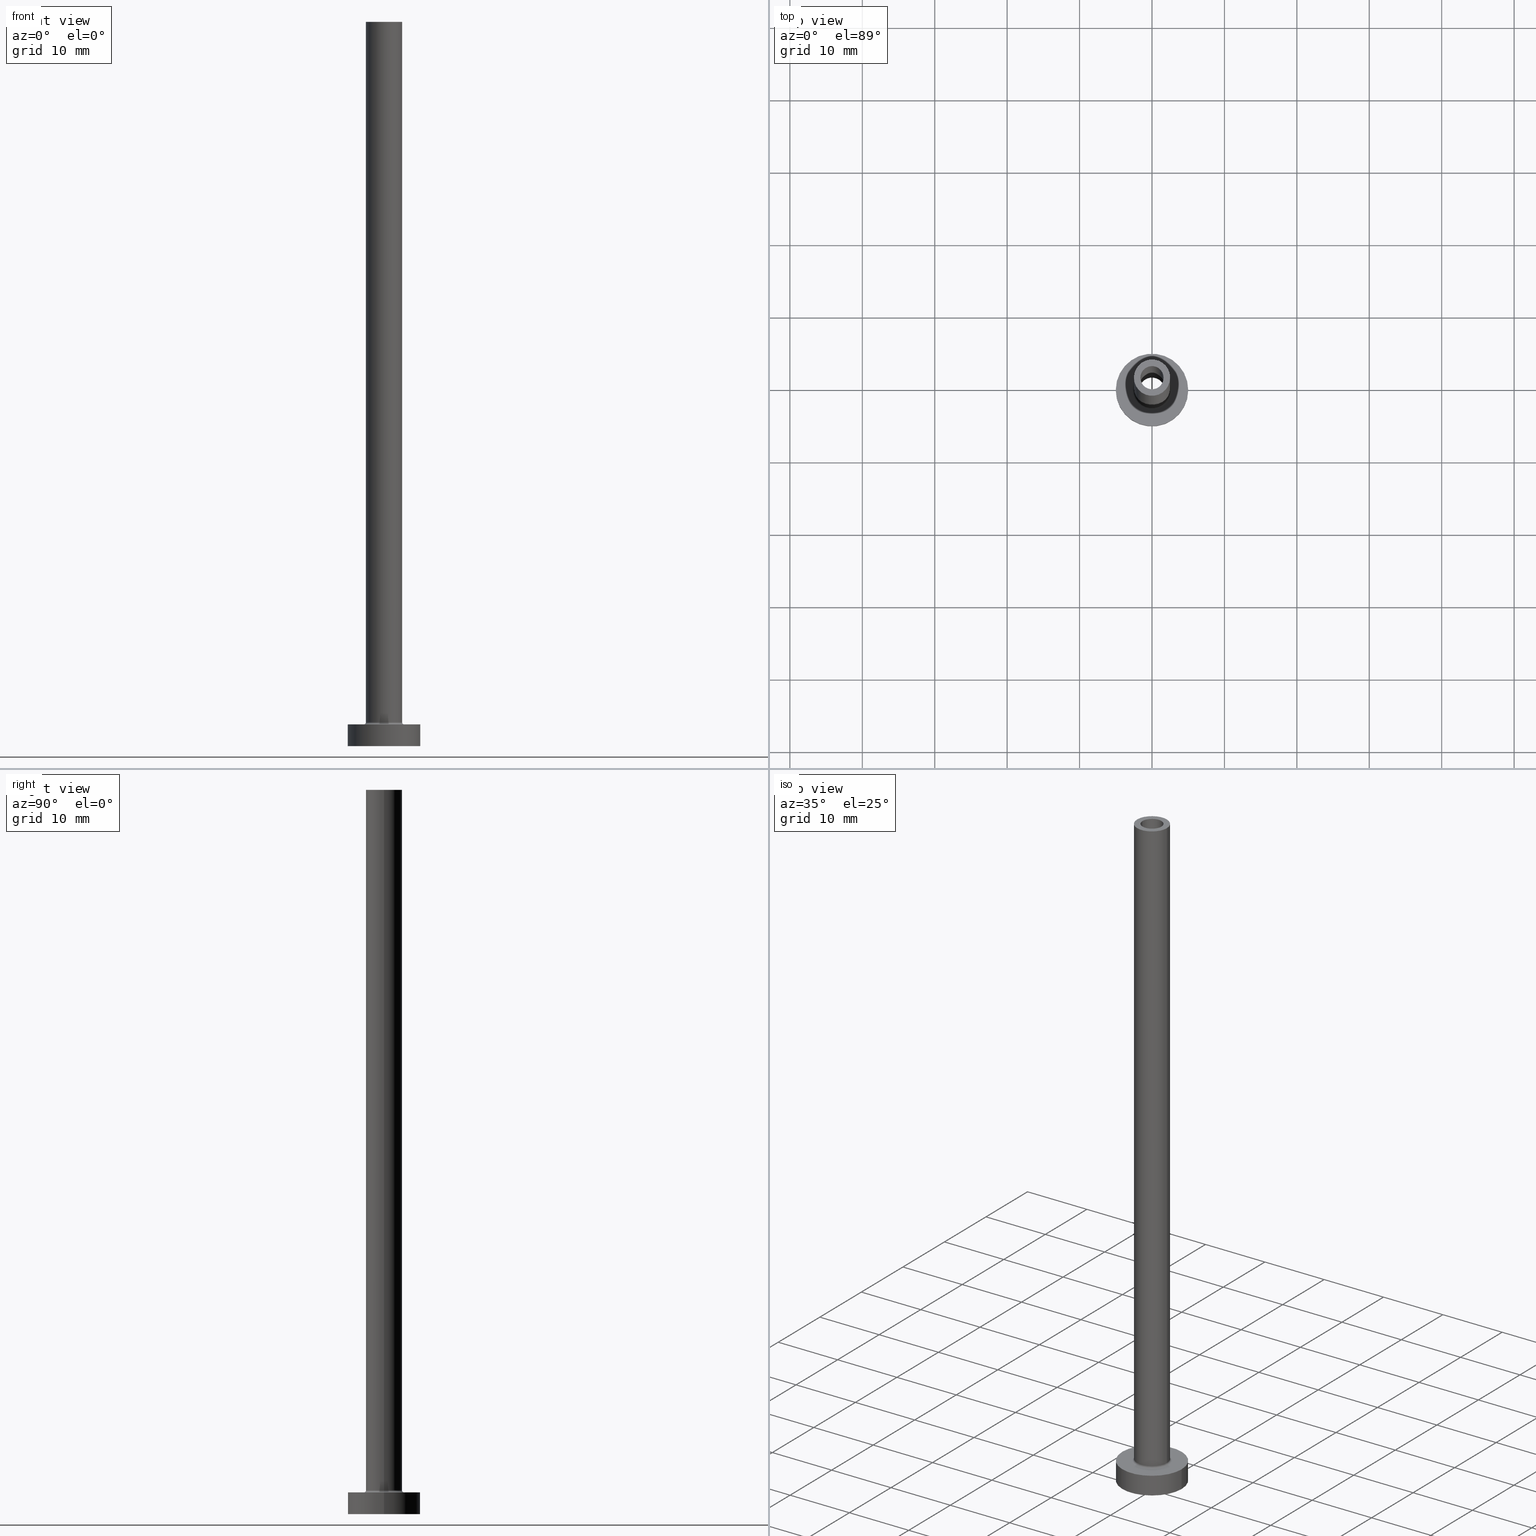
[diagram: canonical four-view strip — front | top / right | iso, engineering-drawing reading convention]
A machine part, canonical four-view strip (front | top / right | iso — engineering-drawing reading convention). The complete STEP part file that produces these views, byte-faithful:
ISO-10303-21;
HEADER;
FILE_DESCRIPTION (( 'STEP AP203' ),
    '1' );
FILE_NAME ('b36a.STEP',
    '2023-02-13T17:58:02',
    ( '' ),
    ( '' ),
    'SwSTEP 2.0',
    'SolidWorks 2019',
    '' );
FILE_SCHEMA (( 'CONFIG_CONTROL_DESIGN' ));
ENDSEC;

DATA;
#1 = CIRCLE ( 'NONE', #62, 2.799999999999999822 ) ;
#2 = DIRECTION ( 'NONE',  ( 0.000000000000000000, 0.000000000000000000, 1.000000000000000000 ) ) ;
#3 = CIRCLE ( 'NONE', #119, 1.750000000000000000 ) ;
#4 = LOCAL_TIME ( 18, 58, 2.000000000000000000, #69 ) ;
#5 = ORIENTED_EDGE ( 'NONE', *, *, #247, .F. ) ;
#6 = DIRECTION ( 'NONE',  ( 1.000000000000000000, 0.000000000000000000, -0.000000000000000000 ) ) ;
#7 = ORIENTED_EDGE ( 'NONE', *, *, #336, .T. ) ;
#8 = CARTESIAN_POINT ( 'NONE',  ( 2.799999999999999822, 0.000000000000000000, 3.299999999999997158 ) ) ;
#9 = DIRECTION ( 'NONE',  ( -0.000000000000000000, -0.000000000000000000, -1.000000000000000000 ) ) ;
#10 = CARTESIAN_POINT ( 'NONE',  ( -1.600000000000000089, 0.000000000000000000, 55.00000000000000711 ) ) ;
#11 = DIRECTION ( 'NONE',  ( 0.000000000000000000, 0.000000000000000000, 1.000000000000000000 ) ) ;
#12 = ORIENTED_EDGE ( 'NONE', *, *, #419, .F. ) ;
#13 = CIRCLE ( 'NONE', #110, 5.000000000000000000 ) ;
#14 = DIRECTION ( 'NONE',  ( 1.000000000000000000, 0.000000000000000000, 0.000000000000000000 ) ) ;
#15 = VERTEX_POINT ( 'NONE', #38 ) ;
#16 = DIRECTION ( 'NONE',  ( 0.000000000000000000, 0.000000000000000000, 1.000000000000000000 ) ) ;
#17 = EDGE_CURVE ( 'NONE', #445, #213, #342, .T. ) ;
#18 = EDGE_LOOP ( 'NONE', ( #159, #375, #101, #42 ) ) ;
#19 = FACE_OUTER_BOUND ( 'NONE', #111, .T. ) ;
#20 = ORIENTED_EDGE ( 'NONE', *, *, #394, .F. ) ;
#21 = APPROVAL_PERSON_ORGANIZATION ( #103, #29, #248 ) ;
#22 = ORIENTED_EDGE ( 'NONE', *, *, #377, .T. ) ;
#23 = DIRECTION ( 'NONE',  ( -1.000000000000000000, 0.000000000000000000, 0.000000000000000000 ) ) ;
#24 = DIRECTION ( 'NONE',  ( -1.000000000000000000, 0.000000000000000000, 0.000000000000000000 ) ) ;
#25 = PRODUCT ( 'b36a', 'b36a', '', ( #33 ) ) ;
#26 = DIRECTION ( 'NONE',  ( 1.000000000000000000, 0.000000000000000000, 0.000000000000000000 ) ) ;
#27 = CIRCLE ( 'NONE', #243, 2.500000000000000000 ) ;
#28 = CARTESIAN_POINT ( 'NONE',  ( 0.000000000000000000, 0.000000000000000000, 3.000000000000000000 ) ) ;
#29 = APPROVAL ( #309, 'NEUR�EN�' ) ;
#30 = DIRECTION ( 'NONE',  ( 0.000000000000000000, 0.000000000000000000, 1.000000000000000000 ) ) ;
#31 = CIRCLE ( 'NONE', #96, 1.750000000000000000 ) ;
#32 = SECURITY_CLASSIFICATION ( '', '', #116 ) ;
#33 = MECHANICAL_CONTEXT ( 'NONE', #209, 'mechanical' ) ;
#34 = EDGE_CURVE ( 'NONE', #356, #98, #423, .T. ) ;
#35 = ORIENTED_EDGE ( 'NONE', *, *, #324, .F. ) ;
#36 = APPLICATION_PROTOCOL_DEFINITION ( 'international standard', 'config_control_design', 1994, #245 ) ;
#37 = UNCERTAINTY_MEASURE_WITH_UNIT (LENGTH_MEASURE( 1.000000000000000082E-05 ), #455, 'distance_accuracy_value', 'NONE');
#38 = CARTESIAN_POINT ( 'NONE',  ( 1.750000000000000000, 2.143131898507868297E-16, 55.00000000000000711 ) ) ;
#39 = APPROVAL_STATUS ( 'not_yet_approved' ) ;
#40 = DIRECTION ( 'NONE',  ( -1.000000000000000000, 1.224646799147353207E-16, 0.000000000000000000 ) ) ;
#41 = LOCAL_TIME ( 18, 58, 2.000000000000000000, #353 ) ;
#42 = ORIENTED_EDGE ( 'NONE', *, *, #132, .F. ) ;
#43 = APPROVAL_ROLE ( '' ) ;
#44 = ORIENTED_EDGE ( 'NONE', *, *, #95, .T. ) ;
#45 = CALENDAR_DATE ( 2023, 13, 2 ) ;
#46 = CARTESIAN_POINT ( 'NONE',  ( 0.000000000000000000, 0.000000000000000000, 59.94974746830583712 ) ) ;
#47 = CARTESIAN_POINT ( 'NONE',  ( 1.600000000000000089, 1.959434878635764737E-16, 100.0000000000000000 ) ) ;
#48 = CARTESIAN_POINT ( 'NONE',  ( 0.000000000000000000, 0.000000000000000000, 55.00000000000000711 ) ) ;
#49 = COORDINATED_UNIVERSAL_TIME_OFFSET ( 1, 0, .AHEAD. ) ;
#50 = CARTESIAN_POINT ( 'NONE',  ( 2.500000000000000000, 3.061616997868382648E-16, 100.0000000000000000 ) ) ;
#51 = CC_DESIGN_APPROVAL ( #93, ( #214 ) ) ;
#52 = PLANE ( 'NONE',  #59 ) ;
#53 = VERTEX_POINT ( 'NONE', #264 ) ;
#54 = ORIENTED_EDGE ( 'NONE', *, *, #377, .F. ) ;
#55 = VECTOR ( 'NONE', #365, 1000.000000000000000 ) ;
#56 = ADVANCED_FACE ( 'NONE', ( #75 ), #405, .F. ) ;
#57 = EDGE_LOOP ( 'NONE', ( #120, #177, #271, #152 ) ) ;
#58 = PLANE ( 'NONE',  #272 ) ;
#59 = AXIS2_PLACEMENT_3D ( 'NONE', #287, #407, #442 ) ;
#60 = CARTESIAN_POINT ( 'NONE',  ( -2.799999999999999822, 3.429011037612589276E-16, 2.999999999999998668 ) ) ;
#61 = ORIENTED_EDGE ( 'NONE', *, *, #189, .T. ) ;
#62 = AXIS2_PLACEMENT_3D ( 'NONE', #278, #128, #205 ) ;
#63 = PLANE ( 'NONE',  #312 ) ;
#64 = EDGE_LOOP ( 'NONE', ( #321, #91 ) ) ;
#65 = CARTESIAN_POINT ( 'NONE',  ( 0.000000000000000000, 0.000000000000000000, 0.000000000000000000 ) ) ;
#66 = AXIS2_PLACEMENT_3D ( 'NONE', #65, #351, #135 ) ;
#67 = CARTESIAN_POINT ( 'NONE',  ( 0.000000000000000000, 0.000000000000000000, 3.299999999999997158 ) ) ;
#68 = PERSON_AND_ORGANIZATION ( #406, #380 ) ;
#69 = COORDINATED_UNIVERSAL_TIME_OFFSET ( 1, 0, .AHEAD. ) ;
#70 = DATE_AND_TIME ( #207, #137 ) ;
#71 = CARTESIAN_POINT ( 'NONE',  ( 0.000000000000000000, 0.000000000000000000, 3.000000000000000000 ) ) ;
#72 = APPROVAL_ROLE ( '' ) ;
#73 = LINE ( 'NONE', #433, #117 ) ;
#74 = DIRECTION ( 'NONE',  ( 1.000000000000000000, 0.000000000000000000, 0.000000000000000000 ) ) ;
#75 = FACE_OUTER_BOUND ( 'NONE', #318, .T. ) ;
#76 = SHAPE_DEFINITION_REPRESENTATION ( #171, #109 ) ;
#77 = DIRECTION ( 'NONE',  ( -0.000000000000000000, -0.000000000000000000, -1.000000000000000000 ) ) ;
#78 = DIRECTION ( 'NONE',  ( 1.000000000000000000, 0.000000000000000000, 0.000000000000000000 ) ) ;
#79 = CIRCLE ( 'NONE', #124, 2.500000000000000000 ) ;
#80 = ORIENTED_EDGE ( 'NONE', *, *, #90, .T. ) ;
#81 = CYLINDRICAL_SURFACE ( 'NONE', #158, 1.600000000000000089 ) ;
#82 = LINE ( 'NONE', #47, #352 ) ;
#83 = DIRECTION ( 'NONE',  ( -0.000000000000000000, -0.000000000000000000, -1.000000000000000000 ) ) ;
#84 = EDGE_CURVE ( 'NONE', #133, #183, #73, .T. ) ;
#85 = DIRECTION ( 'NONE',  ( 0.000000000000000000, -1.000000000000000000, 0.000000000000000000 ) ) ;
#86 = VECTOR ( 'NONE', #104, 1000.000000000000000 ) ;
#87 = VECTOR ( 'NONE', #77, 1000.000000000000000 ) ;
#88 = ORIENTED_EDGE ( 'NONE', *, *, #162, .F. ) ;
#89 = LINE ( 'NONE', #193, #412 ) ;
#90 = EDGE_CURVE ( 'NONE', #306, #420, #450, .T. ) ;
#91 = ORIENTED_EDGE ( 'NONE', *, *, #257, .F. ) ;
#92 = CARTESIAN_POINT ( 'NONE',  ( -5.000000000000000000, 0.000000000000000000, 0.000000000000000000 ) ) ;
#93 = APPROVAL ( #388, 'NEUR�EN�' ) ;
#94 = AXIS2_PLACEMENT_3D ( 'NONE', #429, #145, #288 ) ;
#95 = EDGE_CURVE ( 'NONE', #179, #445, #357, .T. ) ;
#96 = AXIS2_PLACEMENT_3D ( 'NONE', #291, #404, #78 ) ;
#97 = AXIS2_PLACEMENT_3D ( 'NONE', #188, #217, #40 ) ;
#98 = VERTEX_POINT ( 'NONE', #10 ) ;
#99 = CARTESIAN_POINT ( 'NONE',  ( 1.600000000000000089, 1.959434878635764737E-16, 100.0000000000000000 ) ) ;
#100 = CYLINDRICAL_SURFACE ( 'NONE', #201, 5.000000000000000000 ) ;
#101 = ORIENTED_EDGE ( 'NONE', *, *, #343, .T. ) ;
#102 = CARTESIAN_POINT ( 'NONE',  ( 0.000000000000000000, 0.000000000000000000, 3.000000000000000000 ) ) ;
#103 = PERSON_AND_ORGANIZATION ( #406, #380 ) ;
#104 = DIRECTION ( 'NONE',  ( 0.000000000000000000, 0.000000000000000000, -1.000000000000000000 ) ) ;
#105 = ADVANCED_FACE ( 'NONE', ( #292 ), #438, .F. ) ;
#106 = CARTESIAN_POINT ( 'NONE',  ( 0.000000000000000000, 0.000000000000000000, 55.00000000000000711 ) ) ;
#107 = APPROVAL_DATE_TIME ( #426, #29 ) ;
#108 = ADVANCED_FACE ( 'NONE', ( #170 ), #100, .T. ) ;
#109 = ADVANCED_BREP_SHAPE_REPRESENTATION ( 'b36a', ( #215, #66 ), #263 ) ;
#110 = AXIS2_PLACEMENT_3D ( 'NONE', #155, #118, #121 ) ;
#111 = EDGE_LOOP ( 'NONE', ( #332, #20, #224, #255 ) ) ;
#112 = LINE ( 'NONE', #461, #379 ) ;
#113 = CC_DESIGN_DATE_AND_TIME_ASSIGNMENT ( #175, #347, ( #214 ) ) ;
#114 = FACE_OUTER_BOUND ( 'NONE', #18, .T. ) ;
#115 = EDGE_LOOP ( 'NONE', ( #54, #346 ) ) ;
#116 = SECURITY_CLASSIFICATION_LEVEL ( 'unclassified' ) ;
#117 = VECTOR ( 'NONE', #259, 1000.000000000000000 ) ;
#118 = DIRECTION ( 'NONE',  ( 0.000000000000000000, 0.000000000000000000, 1.000000000000000000 ) ) ;
#119 = AXIS2_PLACEMENT_3D ( 'NONE', #317, #9, #437 ) ;
#120 = ORIENTED_EDGE ( 'NONE', *, *, #249, .F. ) ;
#121 = DIRECTION ( 'NONE',  ( 1.000000000000000000, 0.000000000000000000, 0.000000000000000000 ) ) ;
#122 = CARTESIAN_POINT ( 'NONE',  ( 0.000000000000000000, 0.000000000000000000, 100.0000000000000000 ) ) ;
#123 = CARTESIAN_POINT ( 'NONE',  ( 0.000000000000000000, 0.000000000000000000, 3.000000000000000000 ) ) ;
#124 = AXIS2_PLACEMENT_3D ( 'NONE', #323, #274, #26 ) ;
#125 = CARTESIAN_POINT ( 'NONE',  ( 0.000000000000000000, 0.000000000000000000, 0.000000000000000000 ) ) ;
#126 = ORIENTED_EDGE ( 'NONE', *, *, #231, .T. ) ;
#127 = CLOSED_SHELL ( 'NONE', ( #307, #350, #167, #277, #428, #108, #143, #370, #289, #329, #226, #56, #457, #105 ) ) ;
#128 = DIRECTION ( 'NONE',  ( -0.000000000000000000, -0.000000000000000000, -1.000000000000000000 ) ) ;
#129 = EDGE_LOOP ( 'NONE', ( #12, #296, #451, #381 ) ) ;
#130 = CIRCLE ( 'NONE', #97, 0.2999999999999999334 ) ;
#131 = CARTESIAN_POINT ( 'NONE',  ( 2.500000000000000000, 3.061616997868382648E-16, 3.299999999999997158 ) ) ;
#132 = EDGE_CURVE ( 'NONE', #420, #306, #1, .T. ) ;
#133 = VERTEX_POINT ( 'NONE', #173 ) ;
#134 = PERSON_AND_ORGANIZATION_ROLE ( 'design_owner' ) ;
#135 = DIRECTION ( 'NONE',  ( 1.000000000000000000, 0.000000000000000000, 0.000000000000000000 ) ) ;
#136 =( NAMED_UNIT ( * ) SI_UNIT ( $, .STERADIAN. ) SOLID_ANGLE_UNIT ( ) );
#137 = LOCAL_TIME ( 18, 58, 2.000000000000000000, #242 ) ;
#138 = DIRECTION ( 'NONE',  ( 1.000000000000000000, 0.000000000000000000, -0.000000000000000000 ) ) ;
#139 = ORIENTED_EDGE ( 'NONE', *, *, #34, .T. ) ;
#140 = VERTEX_POINT ( 'NONE', #238 ) ;
#141 = DATE_TIME_ROLE ( 'classification_date' ) ;
#142 = AXIS2_PLACEMENT_3D ( 'NONE', #228, #11, #373 ) ;
#143 = ADVANCED_FACE ( 'NONE', ( #345, #163 ), #63, .T. ) ;
#144 = VERTEX_POINT ( 'NONE', #454 ) ;
#145 = DIRECTION ( 'NONE',  ( 0.000000000000000000, 0.000000000000000000, -1.000000000000000000 ) ) ;
#146 = DIRECTION ( 'NONE',  ( 0.000000000000000000, 0.000000000000000000, -1.000000000000000000 ) ) ;
#147 = DIRECTION ( 'NONE',  ( 0.000000000000000000, 0.000000000000000000, -1.000000000000000000 ) ) ;
#148 = VERTEX_POINT ( 'NONE', #165 ) ;
#149 = PERSON_AND_ORGANIZATION ( #406, #380 ) ;
#150 = DIRECTION ( 'NONE',  ( -1.000000000000000000, 0.000000000000000000, 0.000000000000000000 ) ) ;
#151 = LOCAL_TIME ( 18, 58, 2.000000000000000000, #366 ) ;
#152 = ORIENTED_EDGE ( 'NONE', *, *, #34, .F. ) ;
#153 = DIRECTION ( 'NONE',  ( 0.000000000000000000, 0.000000000000000000, 1.000000000000000000 ) ) ;
#154 = CYLINDRICAL_SURFACE ( 'NONE', #164, 2.500000000000000000 ) ;
#155 = CARTESIAN_POINT ( 'NONE',  ( 0.000000000000000000, 0.000000000000000000, 3.000000000000000000 ) ) ;
#156 = ORIENTED_EDGE ( 'NONE', *, *, #208, .T. ) ;
#157 = APPROVAL ( #39, 'NEUR�EN�' ) ;
#158 = AXIS2_PLACEMENT_3D ( 'NONE', #225, #220, #367 ) ;
#159 = ORIENTED_EDGE ( 'NONE', *, *, #336, .F. ) ;
#160 = EDGE_LOOP ( 'NONE', ( #22, #341, #325, #339 ) ) ;
#161 = DIRECTION ( 'NONE',  ( -0.000000000000000000, -0.000000000000000000, -1.000000000000000000 ) ) ;
#162 = EDGE_CURVE ( 'NONE', #53, #297, #169, .T. ) ;
#163 = FACE_OUTER_BOUND ( 'NONE', #221, .T. ) ;
#164 = AXIS2_PLACEMENT_3D ( 'NONE', #447, #409, #24 ) ;
#165 = CARTESIAN_POINT ( 'NONE',  ( -1.600000000000000089, 0.000000000000000000, 100.0000000000000000 ) ) ;
#166 = CARTESIAN_POINT ( 'NONE',  ( 0.000000000000000000, 0.000000000000000000, 3.299999999999997158 ) ) ;
#167 = ADVANCED_FACE ( 'NONE', ( #384 ), #314, .F. ) ;
#168 = CALENDAR_DATE ( 2023, 13, 2 ) ;
#169 = CIRCLE ( 'NONE', #436, 2.500000000000000000 ) ;
#170 = FACE_OUTER_BOUND ( 'NONE', #283, .T. ) ;
#171 = PRODUCT_DEFINITION_SHAPE ( 'NONE', 'NONE',  #214 ) ;
#172 = TOROIDAL_SURFACE ( 'NONE', #182, 2.799999999999999822, 0.2999999999999999889 ) ;
#173 = CARTESIAN_POINT ( 'NONE',  ( -1.750000000000000000, 0.000000000000000000, 55.00000000000000711 ) ) ;
#174 = VERTEX_POINT ( 'NONE', #276 ) ;
#175 = DATE_AND_TIME ( #168, #41 ) ;
#176 = DIRECTION ( 'NONE',  ( 1.000000000000000000, 0.000000000000000000, 0.000000000000000000 ) ) ;
#177 = ORIENTED_EDGE ( 'NONE', *, *, #359, .T. ) ;
#178 =( NAMED_UNIT ( * ) PLANE_ANGLE_UNIT ( ) SI_UNIT ( $, .RADIAN. ) );
#179 = VERTEX_POINT ( 'NONE', #313 ) ;
#180 = DATE_AND_TIME ( #326, #151 ) ;
#181 = DIRECTION ( 'NONE',  ( 1.000000000000000000, 0.000000000000000000, 0.000000000000000000 ) ) ;
#182 = AXIS2_PLACEMENT_3D ( 'NONE', #254, #218, #258 ) ;
#183 = VERTEX_POINT ( 'NONE', #310 ) ;
#184 = EDGE_LOOP ( 'NONE', ( #200, #139 ) ) ;
#185 = PERSON_AND_ORGANIZATION_ROLE ( 'design_supplier' ) ;
#186 = FACE_OUTER_BOUND ( 'NONE', #64, .T. ) ;
#187 = ORIENTED_EDGE ( 'NONE', *, *, #231, .F. ) ;
#188 = CARTESIAN_POINT ( 'NONE',  ( -2.799999999999999822, 3.429011037612588783E-16, 3.299999999999997158 ) ) ;
#189 = EDGE_CURVE ( 'NONE', #15, #268, #348, .T. ) ;
#190 = EDGE_LOOP ( 'NONE', ( #80, #369 ) ) ;
#191 = FACE_BOUND ( 'NONE', #410, .T. ) ;
#192 = ORIENTED_EDGE ( 'NONE', *, *, #394, .T. ) ;
#193 = CARTESIAN_POINT ( 'NONE',  ( -2.500000000000000000, 0.000000000000000000, 100.0000000000000000 ) ) ;
#194 = FACE_OUTER_BOUND ( 'NONE', #129, .T. ) ;
#195 = CYLINDRICAL_SURFACE ( 'NONE', #458, 5.000000000000000000 ) ;
#196 = AXIS2_PLACEMENT_3D ( 'NONE', #46, #265, #150 ) ;
#197 = ORIENTED_EDGE ( 'NONE', *, *, #95, .F. ) ;
#198 = DIRECTION ( 'NONE',  ( 0.000000000000000000, 0.000000000000000000, 1.000000000000000000 ) ) ;
#199 = CC_DESIGN_DATE_AND_TIME_ASSIGNMENT ( #256, #141, ( #32 ) ) ;
#200 = ORIENTED_EDGE ( 'NONE', *, *, #206, .T. ) ;
#201 = AXIS2_PLACEMENT_3D ( 'NONE', #28, #240, #422 ) ;
#202 = AXIS2_PLACEMENT_3D ( 'NONE', #386, #2, #285 ) ;
#203 = APPROVAL_DATE_TIME ( #70, #93 ) ;
#204 = CIRCLE ( 'NONE', #418, 1.750000000000000000 ) ;
#205 = DIRECTION ( 'NONE',  ( 1.000000000000000000, 0.000000000000000000, 0.000000000000000000 ) ) ;
#206 = EDGE_CURVE ( 'NONE', #98, #356, #411, .T. ) ;
#207 = CALENDAR_DATE ( 2023, 13, 2 ) ;
#208 = EDGE_CURVE ( 'NONE', #268, #183, #3, .T. ) ;
#209 = APPLICATION_CONTEXT ( 'configuration controlled 3d designs of mechanical parts and assemblies' ) ;
#210 = PERSON_AND_ORGANIZATION ( #406, #380 ) ;
#211 = APPROVAL_PERSON_ORGANIZATION ( #398, #157, #43 ) ;
#212 = DIRECTION ( 'NONE',  ( 0.000000000000000000, 0.000000000000000000, 1.000000000000000000 ) ) ;
#213 = VERTEX_POINT ( 'NONE', #430 ) ;
#214 = PRODUCT_DEFINITION ( 'NEZN�M�', '', #295, #316 ) ;
#215 = MANIFOLD_SOLID_BREP ( 'Odebrat vysunut�m4', #127 ) ;
#216 = DIRECTION ( 'NONE',  ( 1.000000000000000000, 0.000000000000000000, 0.000000000000000000 ) ) ;
#217 = DIRECTION ( 'NONE',  ( 1.224646799147353207E-16, 1.000000000000000000, -0.000000000000000000 ) ) ;
#218 = DIRECTION ( 'NONE',  ( 0.000000000000000000, 0.000000000000000000, 1.000000000000000000 ) ) ;
#219 = ORIENTED_EDGE ( 'NONE', *, *, #84, .T. ) ;
#220 = DIRECTION ( 'NONE',  ( 0.000000000000000000, 0.000000000000000000, -1.000000000000000000 ) ) ;
#221 = EDGE_LOOP ( 'NONE', ( #233, #328 ) ) ;
#222 = EDGE_CURVE ( 'NONE', #148, #98, #112, .T. ) ;
#223 = CARTESIAN_POINT ( 'NONE',  ( 0.000000000000000000, 0.000000000000000000, 3.299999999999997158 ) ) ;
#224 = ORIENTED_EDGE ( 'NONE', *, *, #444, .T. ) ;
#225 = CARTESIAN_POINT ( 'NONE',  ( 0.000000000000000000, 0.000000000000000000, 100.0000000000000000 ) ) ;
#226 = ADVANCED_FACE ( 'NONE', ( #114 ), #172, .F. ) ;
#227 = DIRECTION ( 'NONE',  ( -1.000000000000000000, 0.000000000000000000, 0.000000000000000000 ) ) ;
#228 = CARTESIAN_POINT ( 'NONE',  ( 0.000000000000000000, 0.000000000000000000, 100.0000000000000000 ) ) ;
#229 = CIRCLE ( 'NONE', #453, 1.600000000000000089 ) ;
#230 = FACE_OUTER_BOUND ( 'NONE', #320, .T. ) ;
#231 = EDGE_CURVE ( 'NONE', #133, #15, #269, .T. ) ;
#232 = ORIENTED_EDGE ( 'NONE', *, *, #343, .F. ) ;
#233 = ORIENTED_EDGE ( 'NONE', *, *, #362, .T. ) ;
#234 = CARTESIAN_POINT ( 'NONE',  ( 0.000000000000000000, 0.000000000000000000, 3.000000000000000000 ) ) ;
#235 = AXIS2_PLACEMENT_3D ( 'NONE', #106, #368, #176 ) ;
#236 = CC_DESIGN_APPROVAL ( #29, ( #295 ) ) ;
#237 = DIRECTION ( 'NONE',  ( -0.000000000000000000, -0.000000000000000000, -1.000000000000000000 ) ) ;
#238 = CARTESIAN_POINT ( 'NONE',  ( -2.500000000000000000, 0.000000000000000000, 100.0000000000000000 ) ) ;
#239 = FACE_BOUND ( 'NONE', #184, .T. ) ;
#240 = DIRECTION ( 'NONE',  ( -0.000000000000000000, -0.000000000000000000, -1.000000000000000000 ) ) ;
#241 = AXIS2_PLACEMENT_3D ( 'NONE', #223, #396, #400 ) ;
#242 = COORDINATED_UNIVERSAL_TIME_OFFSET ( 1, 0, .AHEAD. ) ;
#243 = AXIS2_PLACEMENT_3D ( 'NONE', #334, #16, #181 ) ;
#244 = CC_DESIGN_PERSON_AND_ORGANIZATION_ASSIGNMENT ( #149, #185, ( #295 ) ) ;
#245 = APPLICATION_CONTEXT ( 'configuration controlled 3d designs of mechanical parts and assemblies' ) ;
#246 = EDGE_CURVE ( 'NONE', #297, #53, #446, .T. ) ;
#247 = EDGE_CURVE ( 'NONE', #15, #133, #31, .T. ) ;
#248 = APPROVAL_ROLE ( '' ) ;
#249 = EDGE_CURVE ( 'NONE', #302, #356, #82, .T. ) ;
#250 = EDGE_LOOP ( 'NONE', ( #88, #7, #393, #232 ) ) ;
#251 = PERSON_AND_ORGANIZATION ( #406, #380 ) ;
#252 = CIRCLE ( 'NONE', #304, 5.000000000000000000 ) ;
#253 = ORIENTED_EDGE ( 'NONE', *, *, #17, .T. ) ;
#254 = CARTESIAN_POINT ( 'NONE',  ( 0.000000000000000000, 0.000000000000000000, 3.299999999999997158 ) ) ;
#255 = ORIENTED_EDGE ( 'NONE', *, *, #162, .T. ) ;
#256 = DATE_AND_TIME ( #45, #354 ) ;
#257 = EDGE_CURVE ( 'NONE', #213, #445, #452, .T. ) ;
#258 = DIRECTION ( 'NONE',  ( 1.000000000000000000, 0.000000000000000000, 0.000000000000000000 ) ) ;
#259 = DIRECTION ( 'NONE',  ( 0.000000000000000000, 0.000000000000000000, -1.000000000000000000 ) ) ;
#260 = PERSON_AND_ORGANIZATION ( #406, #380 ) ;
#261 = CARTESIAN_POINT ( 'NONE',  ( 0.000000000000000000, 0.000000000000000000, 100.0000000000000000 ) ) ;
#262 = CC_DESIGN_PERSON_AND_ORGANIZATION_ASSIGNMENT ( #260, #434, ( #32 ) ) ;
#263 =( GEOMETRIC_REPRESENTATION_CONTEXT ( 3 ) GLOBAL_UNCERTAINTY_ASSIGNED_CONTEXT ( ( #37 ) ) GLOBAL_UNIT_ASSIGNED_CONTEXT ( ( #455, #178, #136 ) ) REPRESENTATION_CONTEXT ( 'NONE', 'WORKASPACE' ) );
#264 = CARTESIAN_POINT ( 'NONE',  ( -2.500000000000000000, 0.000000000000000000, 3.299999999999997158 ) ) ;
#265 = DIRECTION ( 'NONE',  ( 0.000000000000000000, 0.000000000000000000, -1.000000000000000000 ) ) ;
#266 = DIRECTION ( 'NONE',  ( -1.000000000000000000, 0.000000000000000000, 0.000000000000000000 ) ) ;
#267 = PRODUCT_RELATED_PRODUCT_CATEGORY ( 'detail', '', ( #25 ) ) ;
#268 = VERTEX_POINT ( 'NONE', #413 ) ;
#269 = CIRCLE ( 'NONE', #235, 1.750000000000000000 ) ;
#270 = DIRECTION ( 'NONE',  ( -0.000000000000000000, -0.000000000000000000, -1.000000000000000000 ) ) ;
#271 = ORIENTED_EDGE ( 'NONE', *, *, #222, .T. ) ;
#272 = AXIS2_PLACEMENT_3D ( 'NONE', #382, #198, #340 ) ;
#273 = ORIENTED_EDGE ( 'NONE', *, *, #419, .T. ) ;
#274 = DIRECTION ( 'NONE',  ( 0.000000000000000000, 0.000000000000000000, 1.000000000000000000 ) ) ;
#275 = PERSON_AND_ORGANIZATION_ROLE ( 'creator' ) ;
#276 = CARTESIAN_POINT ( 'NONE',  ( 2.500000000000000000, 3.061616997868382648E-16, 100.0000000000000000 ) ) ;
#277 = ADVANCED_FACE ( 'NONE', ( #194 ), #335, .T. ) ;
#278 = CARTESIAN_POINT ( 'NONE',  ( 0.000000000000000000, 0.000000000000000000, 3.000000000000000000 ) ) ;
#279 = AXIS2_PLACEMENT_3D ( 'NONE', #8, #85, #146 ) ;
#280 = CC_DESIGN_PERSON_AND_ORGANIZATION_ASSIGNMENT ( #251, #361, ( #295 ) ) ;
#281 = DIRECTION ( 'NONE',  ( 0.000000000000000000, 0.000000000000000000, -1.000000000000000000 ) ) ;
#282 = CALENDAR_DATE ( 2023, 13, 2 ) ;
#283 = EDGE_LOOP ( 'NONE', ( #35, #385, #44, #253 ) ) ;
#284 = AXIS2_PLACEMENT_3D ( 'NONE', #166, #30, #383 ) ;
#285 = DIRECTION ( 'NONE',  ( 1.000000000000000000, 0.000000000000000000, 0.000000000000000000 ) ) ;
#286 = DIRECTION ( 'NONE',  ( 0.000000000000000000, 0.000000000000000000, 1.000000000000000000 ) ) ;
#287 = CARTESIAN_POINT ( 'NONE',  ( 0.000000000000000000, 0.000000000000000000, 100.0000000000000000 ) ) ;
#288 = DIRECTION ( 'NONE',  ( -1.000000000000000000, 0.000000000000000000, 0.000000000000000000 ) ) ;
#289 = ADVANCED_FACE ( 'NONE', ( #19 ), #154, .T. ) ;
#290 = CYLINDRICAL_SURFACE ( 'NONE', #196, 1.750000000000000000 ) ;
#291 = CARTESIAN_POINT ( 'NONE',  ( 0.000000000000000000, 0.000000000000000000, 55.00000000000000711 ) ) ;
#292 = FACE_OUTER_BOUND ( 'NONE', #57, .T. ) ;
#293 = APPROVAL_DATE_TIME ( #180, #157 ) ;
#294 = FACE_OUTER_BOUND ( 'NONE', #303, .T. ) ;
#295 = PRODUCT_DEFINITION_FORMATION_WITH_SPECIFIED_SOURCE ( 'LIBOVOLN�', '', #25, .NOT_KNOWN. ) ;
#296 = ORIENTED_EDGE ( 'NONE', *, *, #319, .T. ) ;
#297 = VERTEX_POINT ( 'NONE', #131 ) ;
#298 = CARTESIAN_POINT ( 'NONE',  ( 0.000000000000000000, 0.000000000000000000, 0.000000000000000000 ) ) ;
#299 = ORIENTED_EDGE ( 'NONE', *, *, #414, .F. ) ;
#300 = APPROVAL_PERSON_ORGANIZATION ( #68, #93, #72 ) ;
#301 = ORIENTED_EDGE ( 'NONE', *, *, #257, .T. ) ;
#302 = VERTEX_POINT ( 'NONE', #99 ) ;
#303 = EDGE_LOOP ( 'NONE', ( #126, #61, #156, #349 ) ) ;
#304 = AXIS2_PLACEMENT_3D ( 'NONE', #123, #395, #74 ) ;
#305 = DIRECTION ( 'NONE',  ( 0.000000000000000000, 0.000000000000000000, 1.000000000000000000 ) ) ;
#306 = VERTEX_POINT ( 'NONE', #443 ) ;
#307 = ADVANCED_FACE ( 'NONE', ( #399 ), #81, .F. ) ;
#308 = DIRECTION ( 'NONE',  ( 0.000000000000000000, 0.000000000000000000, 1.000000000000000000 ) ) ;
#309 = APPROVAL_STATUS ( 'not_yet_approved' ) ;
#310 = CARTESIAN_POINT ( 'NONE',  ( -1.750000000000000000, 0.000000000000000000, 0.000000000000000000 ) ) ;
#311 = ORIENTED_EDGE ( 'NONE', *, *, #208, .F. ) ;
#312 = AXIS2_PLACEMENT_3D ( 'NONE', #102, #305, #138 ) ;
#313 = CARTESIAN_POINT ( 'NONE',  ( -5.000000000000000000, 0.000000000000000000, 3.000000000000000000 ) ) ;
#314 = TOROIDAL_SURFACE ( 'NONE', #284, 2.799999999999999822, 0.2999999999999999889 ) ;
#315 = CC_DESIGN_SECURITY_CLASSIFICATION ( #32, ( #295 ) ) ;
#316 = DESIGN_CONTEXT ( 'detailed design', #245, 'design' ) ;
#317 = CARTESIAN_POINT ( 'NONE',  ( 0.000000000000000000, 0.000000000000000000, 0.000000000000000000 ) ) ;
#318 = EDGE_LOOP ( 'NONE', ( #387, #448, #219, #378 ) ) ;
#319 = EDGE_CURVE ( 'NONE', #174, #297, #371, .T. ) ;
#320 = EDGE_LOOP ( 'NONE', ( #187, #5 ) ) ;
#321 = ORIENTED_EDGE ( 'NONE', *, *, #17, .F. ) ;
#322 = AXIS2_PLACEMENT_3D ( 'NONE', #390, #212, #355 ) ;
#323 = CARTESIAN_POINT ( 'NONE',  ( 0.000000000000000000, 0.000000000000000000, 100.0000000000000000 ) ) ;
#324 = EDGE_CURVE ( 'NONE', #144, #213, #358, .T. ) ;
#325 = ORIENTED_EDGE ( 'NONE', *, *, #206, .F. ) ;
#326 = CALENDAR_DATE ( 2023, 13, 2 ) ;
#327 = FACE_OUTER_BOUND ( 'NONE', #376, .T. ) ;
#328 = ORIENTED_EDGE ( 'NONE', *, *, #414, .T. ) ;
#329 = ADVANCED_FACE ( 'NONE', ( #403, #327 ), #52, .T. ) ;
#330 = PLANE ( 'NONE',  #392 ) ;
#331 = CARTESIAN_POINT ( 'NONE',  ( 0.000000000000000000, 0.000000000000000000, 100.0000000000000000 ) ) ;
#332 = ORIENTED_EDGE ( 'NONE', *, *, #319, .F. ) ;
#333 = EDGE_LOOP ( 'NONE', ( #299, #416, #301, #197 ) ) ;
#334 = CARTESIAN_POINT ( 'NONE',  ( 0.000000000000000000, 0.000000000000000000, 100.0000000000000000 ) ) ;
#335 = CYLINDRICAL_SURFACE ( 'NONE', #337, 2.500000000000000000 ) ;
#336 = EDGE_CURVE ( 'NONE', #53, #420, #130, .T. ) ;
#337 = AXIS2_PLACEMENT_3D ( 'NONE', #331, #440, #266 ) ;
#338 = CC_DESIGN_PERSON_AND_ORGANIZATION_ASSIGNMENT ( #210, #275, ( #214 ) ) ;
#339 = ORIENTED_EDGE ( 'NONE', *, *, #222, .F. ) ;
#340 = DIRECTION ( 'NONE',  ( 1.000000000000000000, 0.000000000000000000, -0.000000000000000000 ) ) ;
#341 = ORIENTED_EDGE ( 'NONE', *, *, #249, .T. ) ;
#342 = CIRCLE ( 'NONE', #372, 5.000000000000000000 ) ;
#343 = EDGE_CURVE ( 'NONE', #297, #306, #363, .T. ) ;
#344 = CIRCLE ( 'NONE', #142, 1.600000000000000089 ) ;
#345 = FACE_BOUND ( 'NONE', #190, .T. ) ;
#346 = ORIENTED_EDGE ( 'NONE', *, *, #359, .F. ) ;
#347 = DATE_TIME_ROLE ( 'creation_date' ) ;
#348 = LINE ( 'NONE', #459, #86 ) ;
#349 = ORIENTED_EDGE ( 'NONE', *, *, #84, .F. ) ;
#350 = ADVANCED_FACE ( 'NONE', ( #294 ), #290, .F. ) ;
#351 = DIRECTION ( 'NONE',  ( 0.000000000000000000, 0.000000000000000000, 1.000000000000000000 ) ) ;
#352 = VECTOR ( 'NONE', #281, 1000.000000000000000 ) ;
#353 = COORDINATED_UNIVERSAL_TIME_OFFSET ( 1, 0, .AHEAD. ) ;
#354 = LOCAL_TIME ( 18, 58, 2.000000000000000000, #49 ) ;
#355 = DIRECTION ( 'NONE',  ( 1.000000000000000000, 0.000000000000000000, 0.000000000000000000 ) ) ;
#356 = VERTEX_POINT ( 'NONE', #432 ) ;
#357 = LINE ( 'NONE', #401, #55 ) ;
#358 = LINE ( 'NONE', #364, #87 ) ;
#359 = EDGE_CURVE ( 'NONE', #302, #148, #229, .T. ) ;
#360 = ORIENTED_EDGE ( 'NONE', *, *, #449, .F. ) ;
#361 = PERSON_AND_ORGANIZATION_ROLE ( 'creator' ) ;
#362 = EDGE_CURVE ( 'NONE', #179, #144, #13, .T. ) ;
#363 = CIRCLE ( 'NONE', #279, 0.2999999999999999334 ) ;
#364 = CARTESIAN_POINT ( 'NONE',  ( 5.000000000000000000, 6.123233995736766282E-16, 3.000000000000000000 ) ) ;
#365 = DIRECTION ( 'NONE',  ( -0.000000000000000000, -0.000000000000000000, -1.000000000000000000 ) ) ;
#366 = COORDINATED_UNIVERSAL_TIME_OFFSET ( 1, 0, .AHEAD. ) ;
#367 = DIRECTION ( 'NONE',  ( -1.000000000000000000, 0.000000000000000000, 0.000000000000000000 ) ) ;
#368 = DIRECTION ( 'NONE',  ( 0.000000000000000000, 0.000000000000000000, 1.000000000000000000 ) ) ;
#369 = ORIENTED_EDGE ( 'NONE', *, *, #132, .T. ) ;
#370 = ADVANCED_FACE ( 'NONE', ( #191, #186 ), #330, .F. ) ;
#371 = LINE ( 'NONE', #50, #374 ) ;
#372 = AXIS2_PLACEMENT_3D ( 'NONE', #441, #286, #391 ) ;
#373 = DIRECTION ( 'NONE',  ( 1.000000000000000000, 0.000000000000000000, 0.000000000000000000 ) ) ;
#374 = VECTOR ( 'NONE', #439, 1000.000000000000000 ) ;
#375 = ORIENTED_EDGE ( 'NONE', *, *, #246, .F. ) ;
#376 = EDGE_LOOP ( 'NONE', ( #192, #273 ) ) ;
#377 = EDGE_CURVE ( 'NONE', #148, #302, #344, .T. ) ;
#378 = ORIENTED_EDGE ( 'NONE', *, *, #449, .T. ) ;
#379 = VECTOR ( 'NONE', #147, 1000.000000000000000 ) ;
#380 = ORGANIZATION ( 'NEUR�EN�', 'NEUR�EN�', '' ) ;
#381 = ORIENTED_EDGE ( 'NONE', *, *, #444, .F. ) ;
#382 = CARTESIAN_POINT ( 'NONE',  ( 0.000000000000000000, 0.000000000000000000, 55.00000000000000711 ) ) ;
#383 = DIRECTION ( 'NONE',  ( 1.000000000000000000, 0.000000000000000000, 0.000000000000000000 ) ) ;
#384 = FACE_OUTER_BOUND ( 'NONE', #250, .T. ) ;
#385 = ORIENTED_EDGE ( 'NONE', *, *, #362, .F. ) ;
#386 = CARTESIAN_POINT ( 'NONE',  ( 0.000000000000000000, 0.000000000000000000, 55.00000000000000711 ) ) ;
#387 = ORIENTED_EDGE ( 'NONE', *, *, #189, .F. ) ;
#388 = APPROVAL_STATUS ( 'not_yet_approved' ) ;
#389 = AXIS2_PLACEMENT_3D ( 'NONE', #48, #431, #397 ) ;
#390 = CARTESIAN_POINT ( 'NONE',  ( 0.000000000000000000, 0.000000000000000000, 0.000000000000000000 ) ) ;
#391 = DIRECTION ( 'NONE',  ( 1.000000000000000000, 0.000000000000000000, 0.000000000000000000 ) ) ;
#392 = AXIS2_PLACEMENT_3D ( 'NONE', #298, #153, #6 ) ;
#393 = ORIENTED_EDGE ( 'NONE', *, *, #90, .F. ) ;
#394 = EDGE_CURVE ( 'NONE', #140, #174, #27, .T. ) ;
#395 = DIRECTION ( 'NONE',  ( 0.000000000000000000, 0.000000000000000000, 1.000000000000000000 ) ) ;
#396 = DIRECTION ( 'NONE',  ( 0.000000000000000000, 0.000000000000000000, 1.000000000000000000 ) ) ;
#397 = DIRECTION ( 'NONE',  ( 1.000000000000000000, 0.000000000000000000, 0.000000000000000000 ) ) ;
#398 = PERSON_AND_ORGANIZATION ( #406, #380 ) ;
#399 = FACE_OUTER_BOUND ( 'NONE', #160, .T. ) ;
#400 = DIRECTION ( 'NONE',  ( 1.000000000000000000, 0.000000000000000000, 0.000000000000000000 ) ) ;
#401 = CARTESIAN_POINT ( 'NONE',  ( -5.000000000000000000, 0.000000000000000000, 3.000000000000000000 ) ) ;
#402 = CC_DESIGN_APPROVAL ( #157, ( #32 ) ) ;
#403 = FACE_BOUND ( 'NONE', #115, .T. ) ;
#404 = DIRECTION ( 'NONE',  ( 0.000000000000000000, 0.000000000000000000, 1.000000000000000000 ) ) ;
#405 = CYLINDRICAL_SURFACE ( 'NONE', #94, 1.750000000000000000 ) ;
#406 = PERSON ( 'NEUR�EN�', 'NEUR�EN�', 'NEUR�EN�', ('NEUR�EN�'), ('NEUR�EN�'), ('NEUR�EN�') ) ;
#407 = DIRECTION ( 'NONE',  ( 0.000000000000000000, 0.000000000000000000, 1.000000000000000000 ) ) ;
#408 = AXIS2_PLACEMENT_3D ( 'NONE', #71, #83, #216 ) ;
#409 = DIRECTION ( 'NONE',  ( -0.000000000000000000, -0.000000000000000000, -1.000000000000000000 ) ) ;
#410 = EDGE_LOOP ( 'NONE', ( #360, #311 ) ) ;
#411 = CIRCLE ( 'NONE', #202, 1.600000000000000089 ) ;
#412 = VECTOR ( 'NONE', #270, 1000.000000000000000 ) ;
#413 = CARTESIAN_POINT ( 'NONE',  ( 1.750000000000000000, 2.143131898507868297E-16, 0.000000000000000000 ) ) ;
#414 = EDGE_CURVE ( 'NONE', #144, #179, #252, .T. ) ;
#415 = DIRECTION ( 'NONE',  ( 0.000000000000000000, 0.000000000000000000, -1.000000000000000000 ) ) ;
#416 = ORIENTED_EDGE ( 'NONE', *, *, #324, .T. ) ;
#417 = FACE_OUTER_BOUND ( 'NONE', #333, .T. ) ;
#418 = AXIS2_PLACEMENT_3D ( 'NONE', #125, #161, #421 ) ;
#419 = EDGE_CURVE ( 'NONE', #174, #140, #79, .T. ) ;
#420 = VERTEX_POINT ( 'NONE', #60 ) ;
#421 = DIRECTION ( 'NONE',  ( 1.000000000000000000, 0.000000000000000000, 0.000000000000000000 ) ) ;
#422 = DIRECTION ( 'NONE',  ( -1.000000000000000000, 0.000000000000000000, 0.000000000000000000 ) ) ;
#423 = CIRCLE ( 'NONE', #389, 1.600000000000000089 ) ;
#424 = PERSON_AND_ORGANIZATION ( #406, #380 ) ;
#425 = APPLICATION_PROTOCOL_DEFINITION ( 'international standard', 'config_control_design', 1994, #209 ) ;
#426 = DATE_AND_TIME ( #282, #4 ) ;
#427 = AXIS2_PLACEMENT_3D ( 'NONE', #122, #415, #227 ) ;
#428 = ADVANCED_FACE ( 'NONE', ( #417 ), #195, .T. ) ;
#429 = CARTESIAN_POINT ( 'NONE',  ( 0.000000000000000000, 0.000000000000000000, 59.94974746830583712 ) ) ;
#430 = CARTESIAN_POINT ( 'NONE',  ( 5.000000000000000000, 6.123233995736766282E-16, 0.000000000000000000 ) ) ;
#431 = DIRECTION ( 'NONE',  ( 0.000000000000000000, 0.000000000000000000, 1.000000000000000000 ) ) ;
#432 = CARTESIAN_POINT ( 'NONE',  ( 1.600000000000000089, 1.959434878635764737E-16, 55.00000000000000711 ) ) ;
#433 = CARTESIAN_POINT ( 'NONE',  ( -1.750000000000000000, 0.000000000000000000, 59.94974746830583712 ) ) ;
#434 = PERSON_AND_ORGANIZATION_ROLE ( 'classification_officer' ) ;
#435 = DIRECTION ( 'NONE',  ( 0.000000000000000000, 0.000000000000000000, 1.000000000000000000 ) ) ;
#436 = AXIS2_PLACEMENT_3D ( 'NONE', #67, #308, #456 ) ;
#437 = DIRECTION ( 'NONE',  ( 1.000000000000000000, 0.000000000000000000, 0.000000000000000000 ) ) ;
#438 = CYLINDRICAL_SURFACE ( 'NONE', #427, 1.600000000000000089 ) ;
#439 = DIRECTION ( 'NONE',  ( -0.000000000000000000, -0.000000000000000000, -1.000000000000000000 ) ) ;
#440 = DIRECTION ( 'NONE',  ( -0.000000000000000000, -0.000000000000000000, -1.000000000000000000 ) ) ;
#441 = CARTESIAN_POINT ( 'NONE',  ( 0.000000000000000000, 0.000000000000000000, 0.000000000000000000 ) ) ;
#442 = DIRECTION ( 'NONE',  ( 1.000000000000000000, 0.000000000000000000, -0.000000000000000000 ) ) ;
#443 = CARTESIAN_POINT ( 'NONE',  ( 2.799999999999999822, 0.000000000000000000, 2.999999999999998668 ) ) ;
#444 = EDGE_CURVE ( 'NONE', #140, #53, #89, .T. ) ;
#445 = VERTEX_POINT ( 'NONE', #92 ) ;
#446 = CIRCLE ( 'NONE', #241, 2.500000000000000000 ) ;
#447 = CARTESIAN_POINT ( 'NONE',  ( 0.000000000000000000, 0.000000000000000000, 100.0000000000000000 ) ) ;
#448 = ORIENTED_EDGE ( 'NONE', *, *, #247, .T. ) ;
#449 = EDGE_CURVE ( 'NONE', #183, #268, #204, .T. ) ;
#450 = CIRCLE ( 'NONE', #408, 2.799999999999999822 ) ;
#451 = ORIENTED_EDGE ( 'NONE', *, *, #246, .T. ) ;
#452 = CIRCLE ( 'NONE', #322, 5.000000000000000000 ) ;
#453 = AXIS2_PLACEMENT_3D ( 'NONE', #261, #435, #14 ) ;
#454 = CARTESIAN_POINT ( 'NONE',  ( 5.000000000000000000, 6.123233995736766282E-16, 3.000000000000000000 ) ) ;
#455 =( LENGTH_UNIT ( ) NAMED_UNIT ( * ) SI_UNIT ( .MILLI., .METRE. ) );
#456 = DIRECTION ( 'NONE',  ( 1.000000000000000000, 0.000000000000000000, 0.000000000000000000 ) ) ;
#457 = ADVANCED_FACE ( 'NONE', ( #239, #230 ), #58, .F. ) ;
#458 = AXIS2_PLACEMENT_3D ( 'NONE', #234, #237, #23 ) ;
#459 = CARTESIAN_POINT ( 'NONE',  ( 1.750000000000000000, 2.143131898507868297E-16, 59.94974746830583712 ) ) ;
#460 = CC_DESIGN_PERSON_AND_ORGANIZATION_ASSIGNMENT ( #424, #134, ( #25 ) ) ;
#461 = CARTESIAN_POINT ( 'NONE',  ( -1.600000000000000089, 0.000000000000000000, 100.0000000000000000 ) ) ;
ENDSEC;
END-ISO-10303-21;
